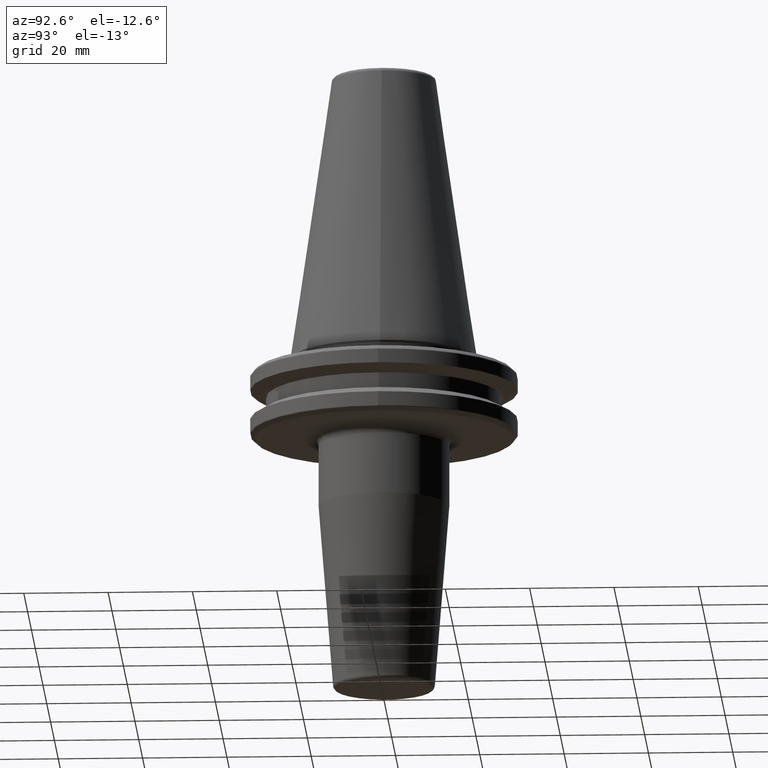
[diagram: clean part render]
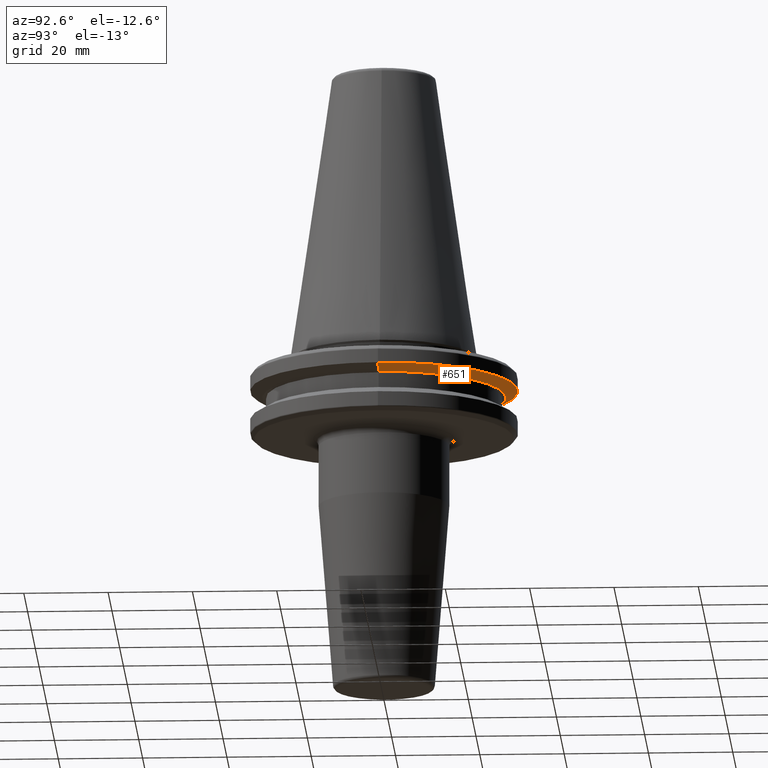
[diagram: same view with one face highlighted and labeled with its STEP entity id]
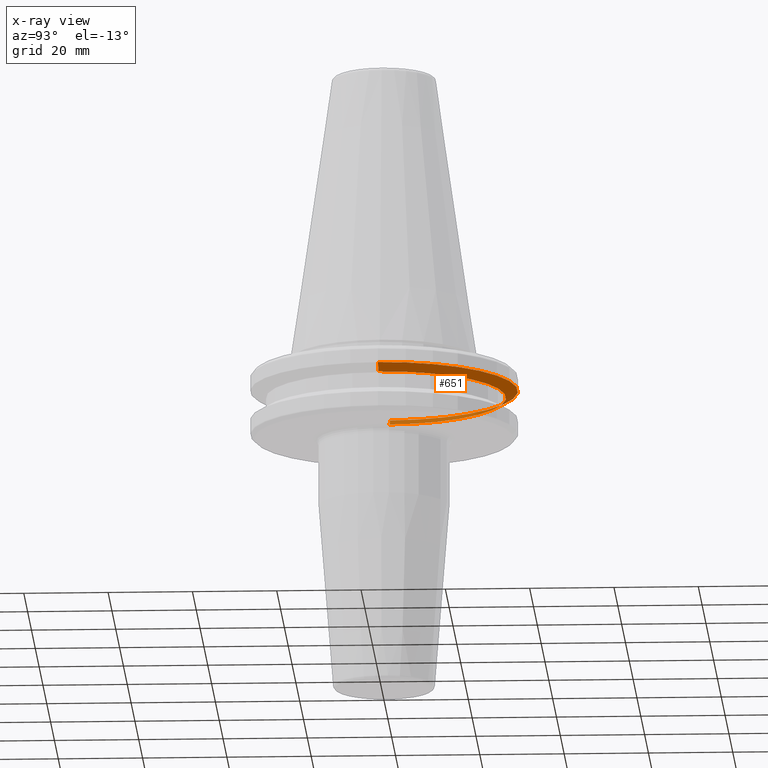
[diagram: x-ray of the same camera — body ghosted, the highlighted face saturated]
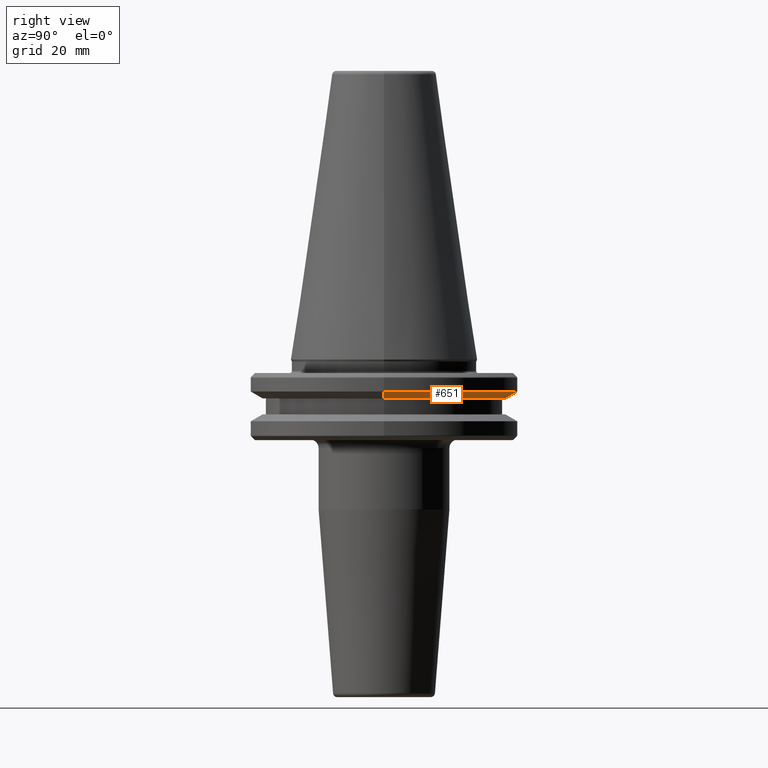
[diagram: same view with one face highlighted and labeled with its STEP entity id]
A machine part, auxiliary view. The second image highlights one B-rep face of the part: STEP entity #651.
The next image is the same camera in x-ray: the body ghosted, the highlighted face saturated — about 20% of this face is hidden behind the body in this view.
A second angle (right view) of the same face is appended — the face is thin or edge-on in the first view.
In plain terms, the highlighted conical surface has half-angle 60 deg.
Its self-contained STEP definition (entity closure, byte-faithful):
#75 = CARTESIAN_POINT ( 'NONE',  ( -31.75000000000000000, 3.888253587292846500E-015, -7.578163357943284800 ) ) ;
#243 = DIRECTION ( 'NONE',  ( -0.0000000000000000000, -0.0000000000000000000, 1.000000000000000000 ) ) ;
#289 = LINE ( 'NONE', #75, #750 ) ;
#331 = VERTEX_POINT ( 'NONE', #785 ) ;
#422 = CARTESIAN_POINT ( 'NONE',  ( 31.75000000000000000, 0.0000000000000000000, -7.578163357943284800 ) ) ;
#444 = CIRCLE ( 'NONE', #887, 28.94089653438084400 ) ;
#452 = AXIS2_PLACEMENT_3D ( 'NONE', #1130, #243, #1218 ) ;
#458 = EDGE_CURVE ( 'NONE', #615, #563, #606, .T. ) ;
#460 = EDGE_CURVE ( 'NONE', #331, #851, #444, .T. ) ;
#462 = ORIENTED_EDGE ( 'NONE', *, *, #460, .T. ) ;
#483 = FACE_OUTER_BOUND ( 'NONE', #628, .T. ) ;
#542 = VECTOR ( 'NONE', #1011, 1000.000000000000000 ) ;
#563 = VERTEX_POINT ( 'NONE', #736 ) ;
#606 = CIRCLE ( 'NONE', #861, 31.75000000000000000 ) ;
#615 = VERTEX_POINT ( 'NONE', #704 ) ;
#625 = DIRECTION ( 'NONE',  ( 1.000000000000000000, 0.0000000000000000000, 0.0000000000000000000 ) ) ;
#628 = EDGE_LOOP ( 'NONE', ( #462, #921, #1010, #1239 ) ) ;
#651 = ADVANCED_FACE ( 'NONE', ( #483 ), #711, .T. ) ;
#680 = EDGE_CURVE ( 'NONE', #331, #615, #1253, .T. ) ;
#704 = CARTESIAN_POINT ( 'NONE',  ( 31.75000000000000000, 0.0000000000000000000, -7.578163357943284800 ) ) ;
#711 = CONICAL_SURFACE ( 'NONE', #452, 31.75000000000000000, 1.047197551196598500 ) ;
#736 = CARTESIAN_POINT ( 'NONE',  ( -31.75000000000000000, 3.888253587292846500E-015, -7.578163357943284800 ) ) ;
#750 = VECTOR ( 'NONE', #974, 1000.000000000000000 ) ;
#761 = CARTESIAN_POINT ( 'NONE',  ( -28.94089653438084400, 3.716245608910634800E-015, -9.200000000000013500 ) ) ;
#785 = CARTESIAN_POINT ( 'NONE',  ( 28.94089653438084400, 0.0000000000000000000, -9.200000000000013500 ) ) ;
#840 = EDGE_CURVE ( 'NONE', #851, #563, #289, .T. ) ;
#851 = VERTEX_POINT ( 'NONE', #761 ) ;
#861 = AXIS2_PLACEMENT_3D ( 'NONE', #1022, #1209, #913 ) ;
#887 = AXIS2_PLACEMENT_3D ( 'NONE', #1026, #1113, #625 ) ;
#913 = DIRECTION ( 'NONE',  ( 1.000000000000000000, 0.0000000000000000000, 0.0000000000000000000 ) ) ;
#921 = ORIENTED_EDGE ( 'NONE', *, *, #840, .T. ) ;
#974 = DIRECTION ( 'NONE',  ( -0.8660254037844390400, 1.060575238724907400E-016, 0.4999999999999993300 ) ) ;
#1010 = ORIENTED_EDGE ( 'NONE', *, *, #458, .F. ) ;
#1011 = DIRECTION ( 'NONE',  ( 0.8660254037844390400, 0.0000000000000000000, 0.4999999999999993300 ) ) ;
#1022 = CARTESIAN_POINT ( 'NONE',  ( 0.0000000000000000000, 0.0000000000000000000, -7.578163357943284800 ) ) ;
#1026 = CARTESIAN_POINT ( 'NONE',  ( 0.0000000000000000000, 0.0000000000000000000, -9.200000000000013500 ) ) ;
#1113 = DIRECTION ( 'NONE',  ( -0.0000000000000000000, -0.0000000000000000000, 1.000000000000000000 ) ) ;
#1130 = CARTESIAN_POINT ( 'NONE',  ( 0.0000000000000000000, 0.0000000000000000000, -7.578163357943284800 ) ) ;
#1209 = DIRECTION ( 'NONE',  ( -0.0000000000000000000, -0.0000000000000000000, 1.000000000000000000 ) ) ;
#1218 = DIRECTION ( 'NONE',  ( 1.000000000000000000, 0.0000000000000000000, 0.0000000000000000000 ) ) ;
#1239 = ORIENTED_EDGE ( 'NONE', *, *, #680, .F. ) ;
#1253 = LINE ( 'NONE', #422, #542 ) ;